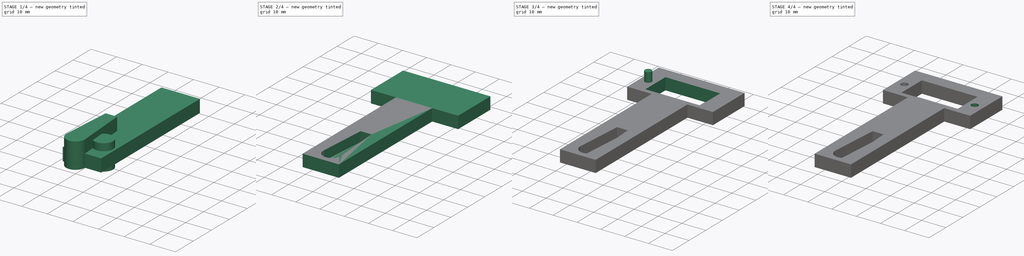
[diagram: build sequence overview — one tinted view per stage of 4, left to right]
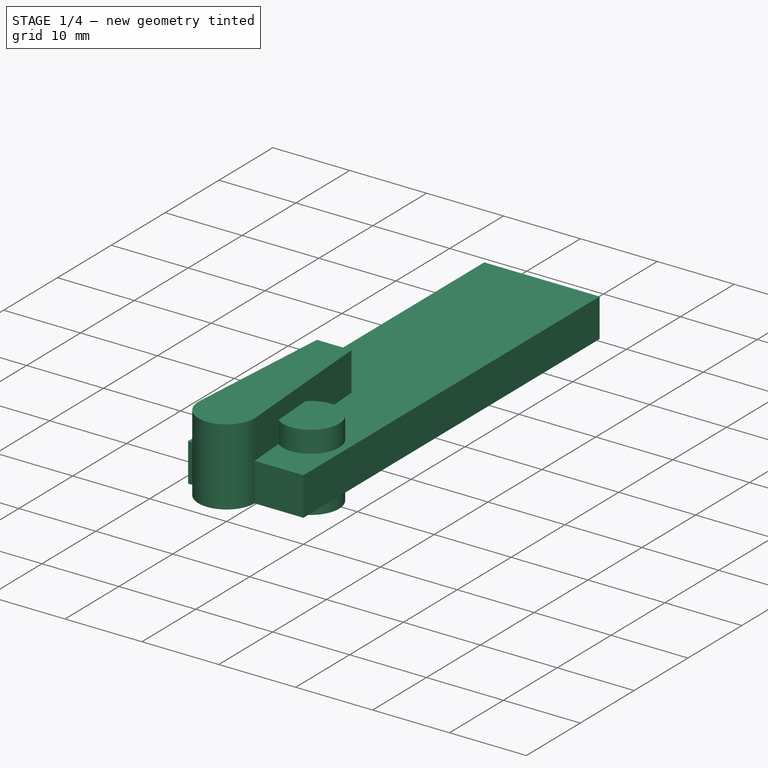
[diagram: stage 1 of 4 — iso view after this stage's code; geometry added in this stage tinted green]
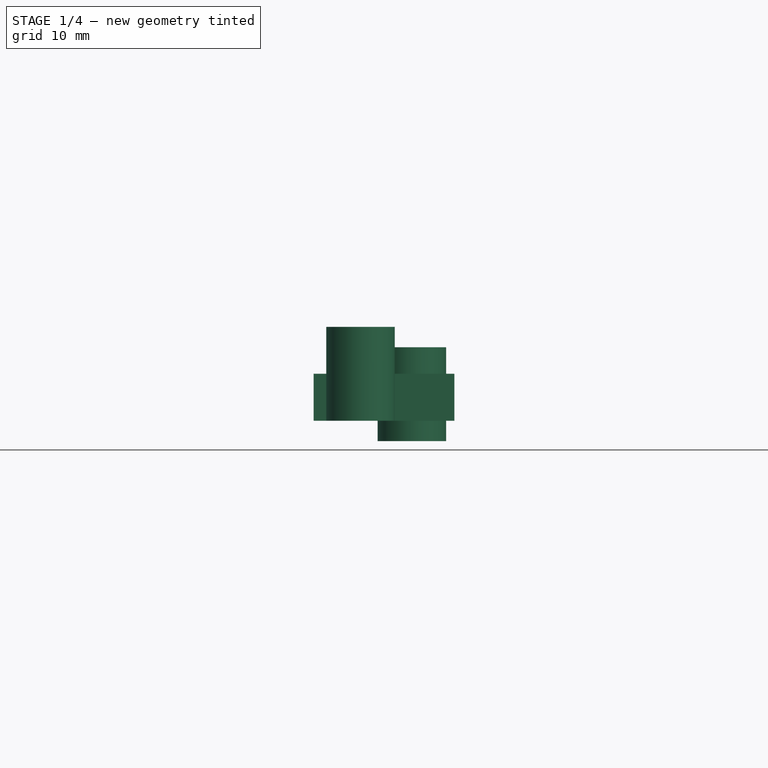
[diagram: stage 1 of 4 — front view after this stage's code; geometry added in this stage tinted green]
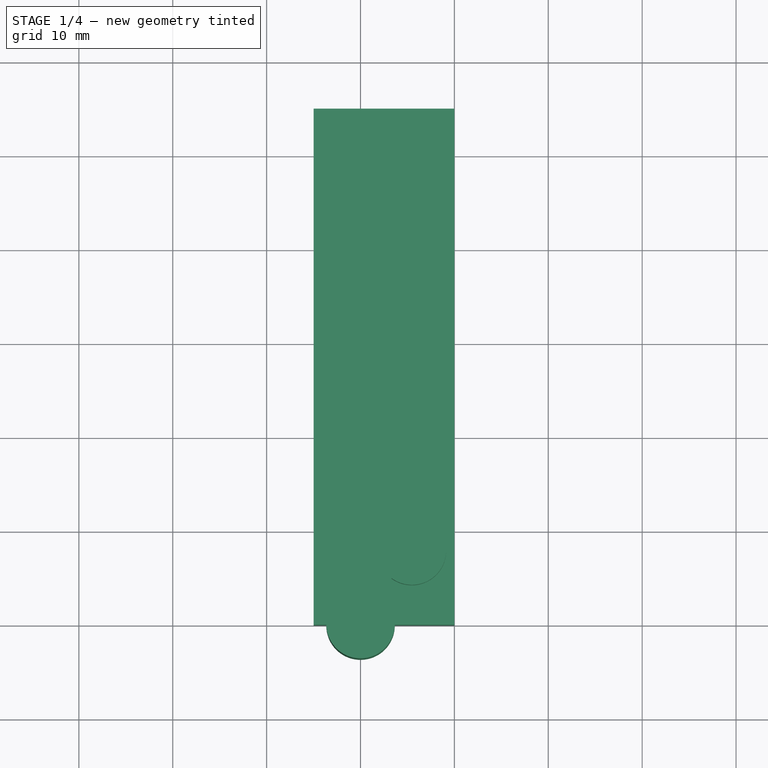
[diagram: stage 1 of 4 — top view after this stage's code; geometry added in this stage tinted green]
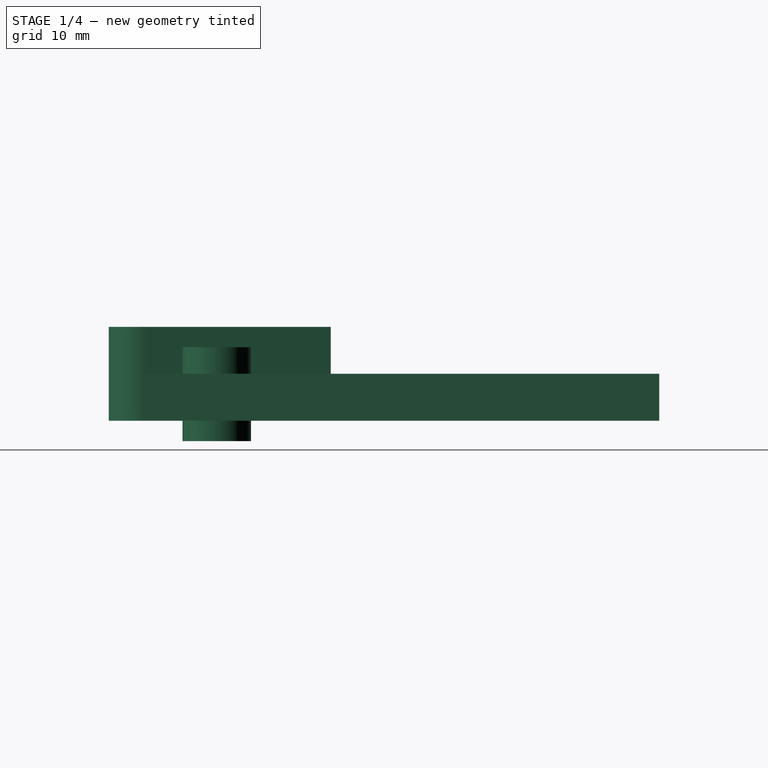
[diagram: stage 1 of 4 — right view after this stage's code; geometry added in this stage tinted green]
FCSTD DOCUMENT  (FreeCAD 0.20R29603 (Git))
Label: hook_holder_servo_lever_test
License: All rights reserved
LicenseURL: http://en.wikipedia.org/wiki/All_rights_reserved
objects: Part::Cut×5, Part::Box×3, Part::Cylinder×3, Sketcher::SketchObject×1, PartDesign::Pad×1, PartDesign::Body×1
note: 15 computed .brp shape members not serialized (recipe doc carries the construction recipe); baked Part::Feature solids carry a one-line shape summary decoded from their .brp

FEATURE [Sketcher::SketchObject] Sketch
  FullyConstrained = false
  MapMode = 5
  Support = -> [XY_Plane]
  sketch-geometry (4):
    g0: ArcOfCircle CenterX=0 CenterY=0 CenterZ=0 NormalX=0 NormalY=0 NormalZ=1 AngleXU=0 Radius=3.65 StartAngle=3.07126 EndAngle=6.35352
    g1: LineSegment StartX=-3.64098 StartY=0.256515 StartZ=0 EndX=-2.25 EndY=20 EndZ=0
    g2: LineSegment StartX=-2.25 StartY=20 StartZ=0 EndX=2.25 EndY=20 EndZ=0
    g3: LineSegment StartX=2.25 StartY=20 StartZ=0 EndX=3.64098 EndY=0.256515 EndZ=0
  constraints (9):
    c: Coincident(g0,g-1)
    c: Radius(g0) = 3.65
    c: Coincident(g2,g1)
    c: Coincident(g3,g2)
    c: DistanceX(g1,g-1) = 2.25
    c: DistanceX(g-1,g2) = 2.25
    c: DistanceY(g-1,g1) = 20
    c: Tangent(g0,g3) = 1.5708
    c: Tangent(g0,g1) = 1.5708
FEATURE [PartDesign::Pad] Pad
  Direction = (0,0,1)
  Length = 10
  Length2 = 10
  Profile = -> Sketch
  ReferenceAxis = -> Sketch [N_Axis]
  Type = 0
FEATURE [PartDesign::Body] Body
  Group = -> [Sketch,Pad]
  Origin = -> Origin
  Placement = pos=(3,6,1) rot=(0,0,1;0rad)
  Tip = -> Pad
FEATURE [Part::Box] Box003  label="Cube001"
  AttacherType = Attacher::AttachEngine3D
  Height = 5
  Length = 15
  Placement = pos=(-5,0,0) rot=(0,0,1;0rad)
  Width = 55
FEATURE [Part::Cylinder] Cylinder
  Angle = 360
  AttacherType = Attacher::AttachEngine3D
  FirstAngle = 0
  Height = 10
  Placement = pos=(5.47,7.86,-2.18) rot=(0,0,1;0rad)
  Radius = 3.65
  SecondAngle = 0
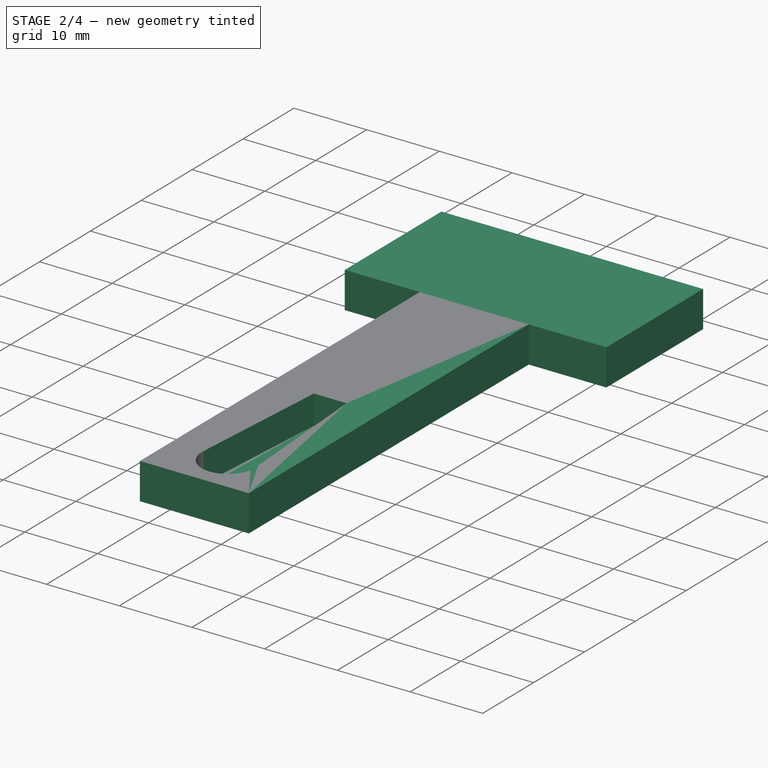
[diagram: stage 2 of 4 — iso view after this stage's code; geometry added in this stage tinted green]
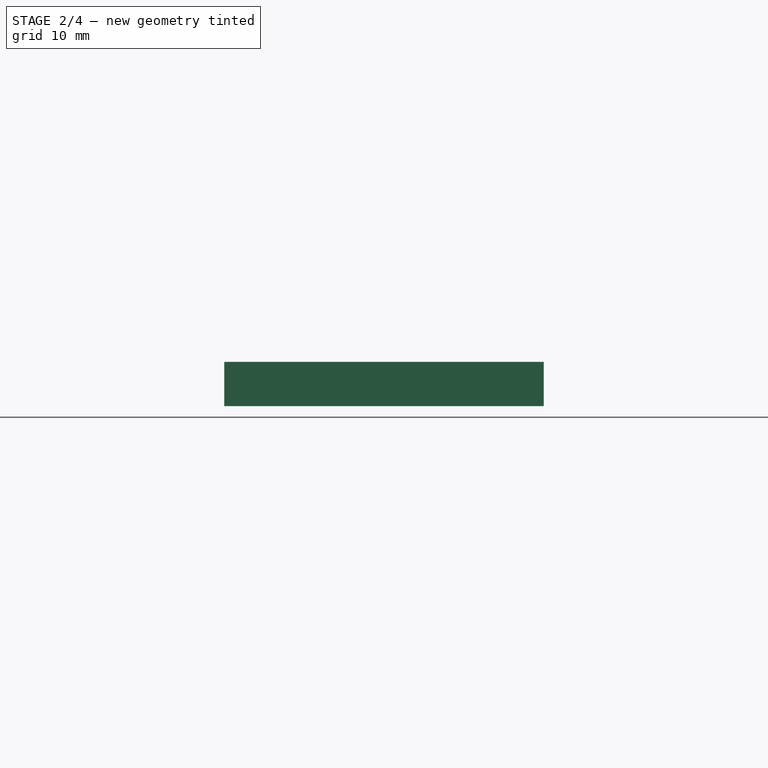
[diagram: stage 2 of 4 — front view after this stage's code; geometry added in this stage tinted green]
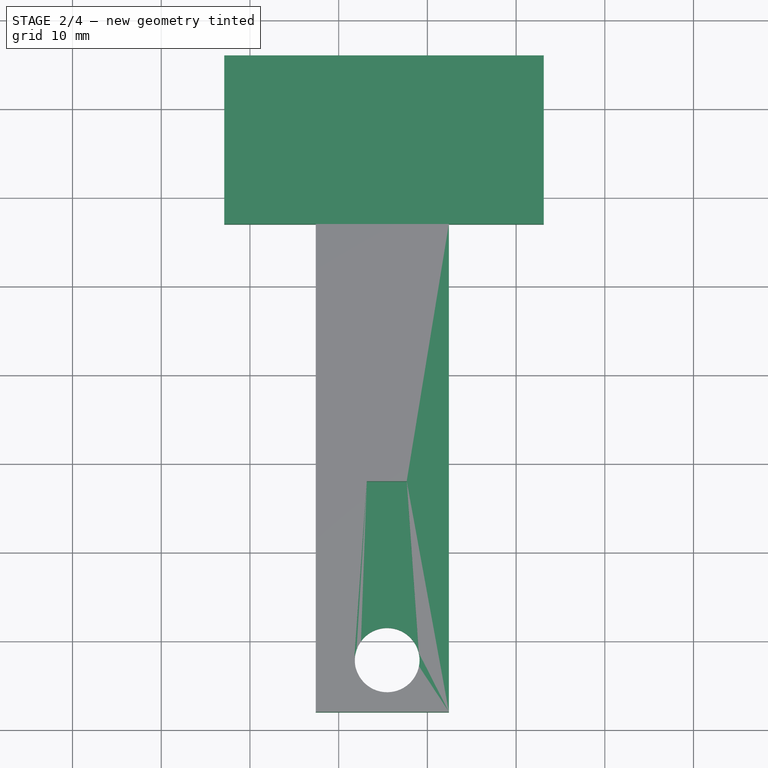
[diagram: stage 2 of 4 — top view after this stage's code; geometry added in this stage tinted green]
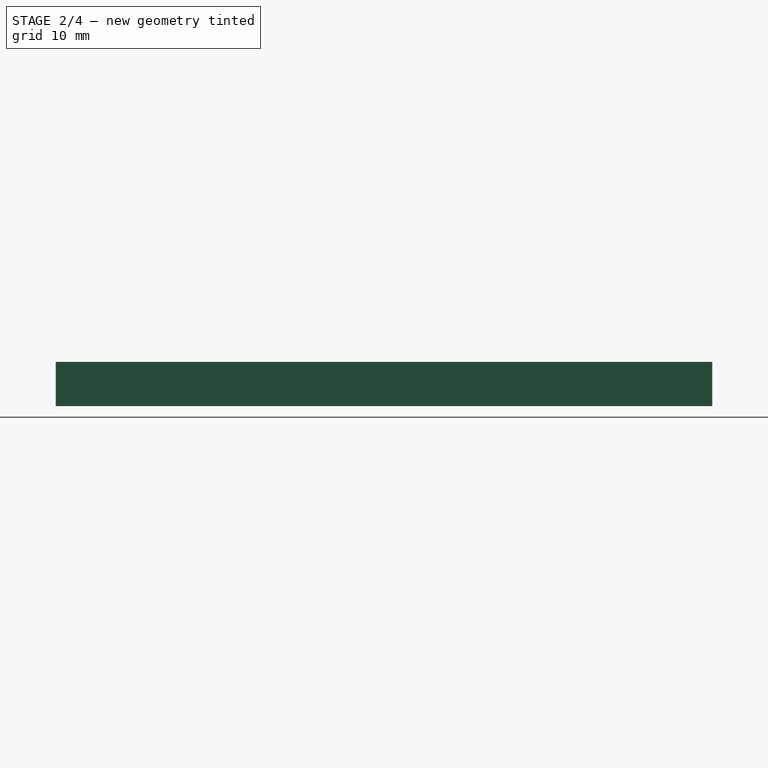
[diagram: stage 2 of 4 — right view after this stage's code; geometry added in this stage tinted green]
FEATURE [Part::Box] Box002  label="top_body"
  AttacherType = Attacher::AttachEngine3D
  Height = 5
  Length = 36
  Placement = pos=(-12.89,57,0) rot=(0,0,1;0rad)
  Width = 19
FEATURE [Part::Cut] Cut007
  Base = -> Box003
  Placement = pos=(2.42,2,0) rot=(0,0,1;0rad)
  Tool = -> Body
FEATURE [Part::Cut] Cut008
  Base = -> Cut007
  Tool = -> Cylinder
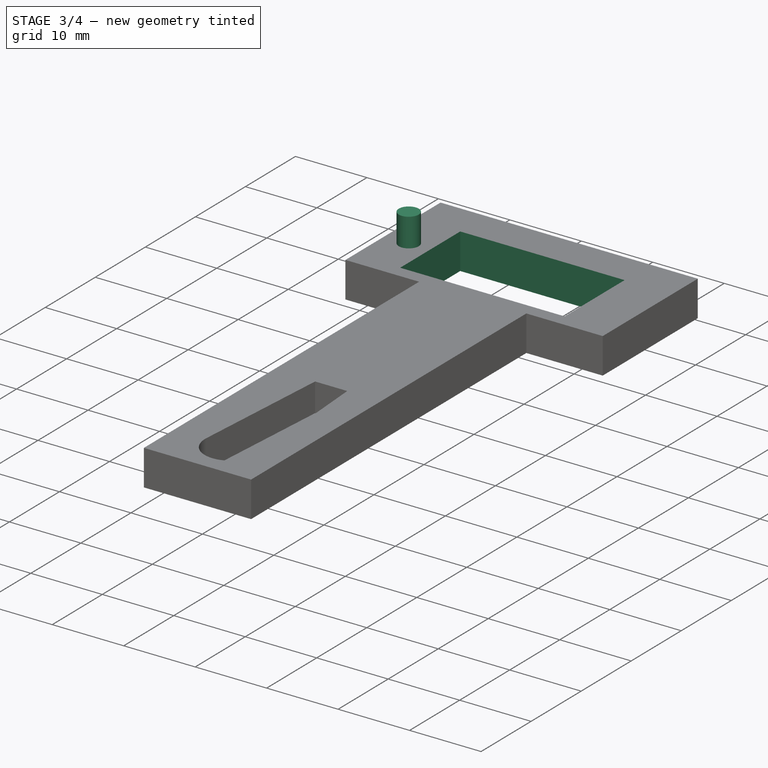
[diagram: stage 3 of 4 — iso view after this stage's code; geometry added in this stage tinted green]
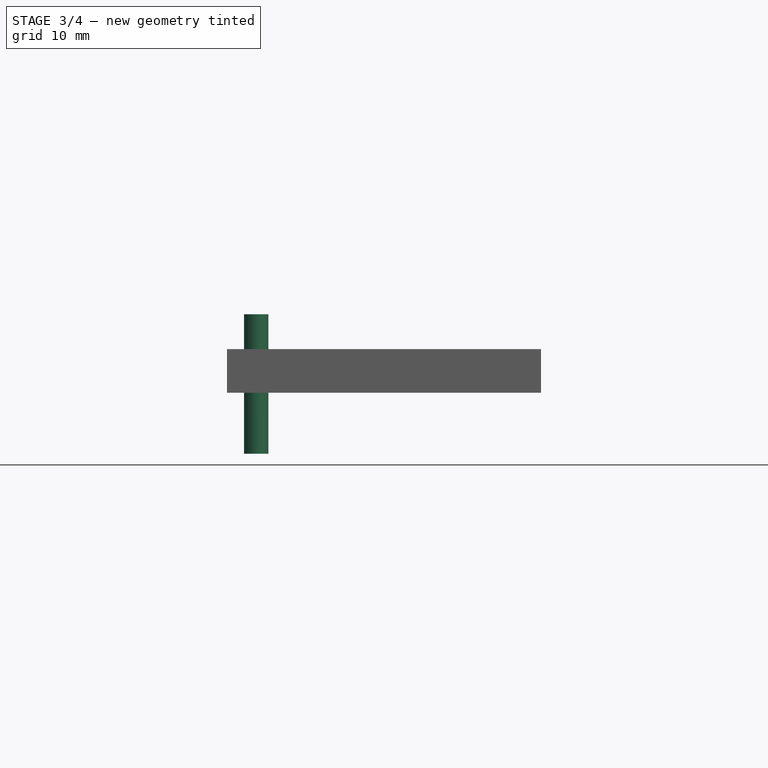
[diagram: stage 3 of 4 — front view after this stage's code; geometry added in this stage tinted green]
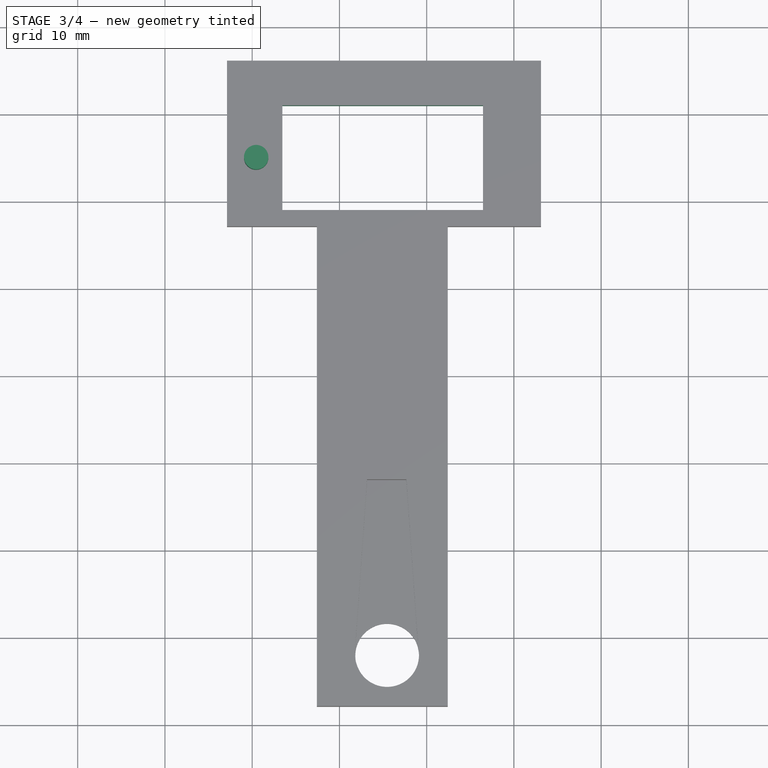
[diagram: stage 3 of 4 — top view after this stage's code; geometry added in this stage tinted green]
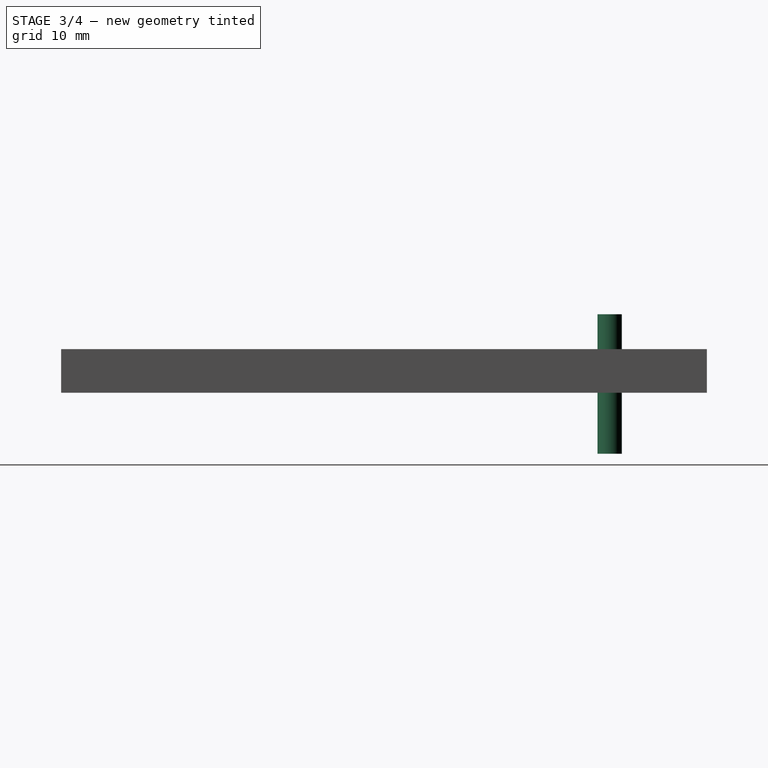
[diagram: stage 3 of 4 — right view after this stage's code; geometry added in this stage tinted green]
FEATURE [Part::Box] Box  label="Cube"
  AttacherType = Attacher::AttachEngine3D
  Height = 10
  Length = 23
  Placement = pos=(-6.54,58.87,-1) rot=(0,0,1;0rad)
  Width = 12
FEATURE [Part::Cylinder] Cylinder004
  Angle = 360
  AttacherType = Attacher::AttachEngine3D
  FirstAngle = 0
  Height = 16
  Placement = pos=(-9.54,64.87,-7) rot=(0,0,1;0rad)
  Radius = 1.4
  SecondAngle = 0
FEATURE [Part::Cut] Cut
  Base = -> Box002
  Tool = -> Box
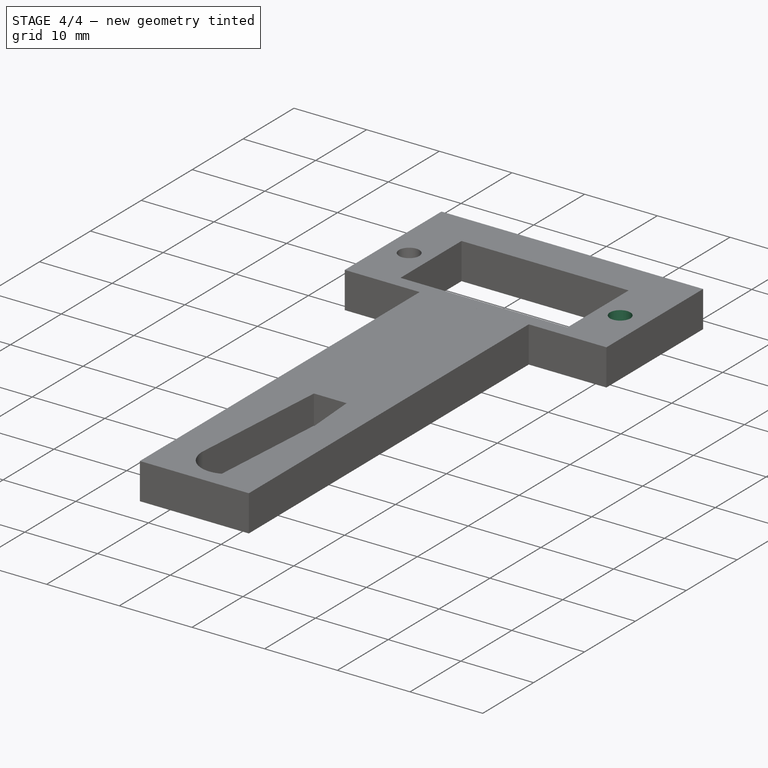
[diagram: stage 4 of 4 — iso view after this stage's code; geometry added in this stage tinted green]
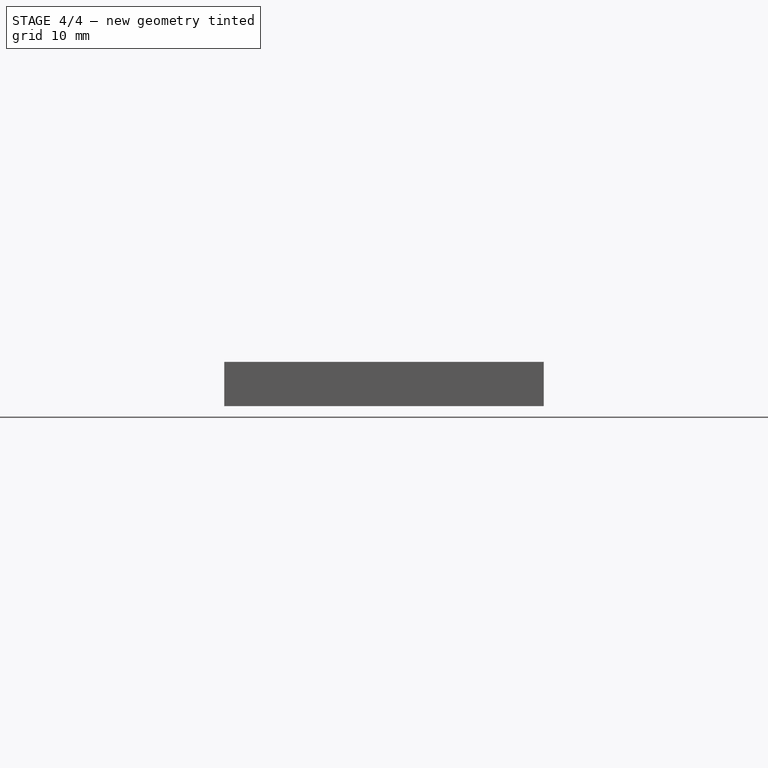
[diagram: stage 4 of 4 — front view after this stage's code; geometry added in this stage tinted green]
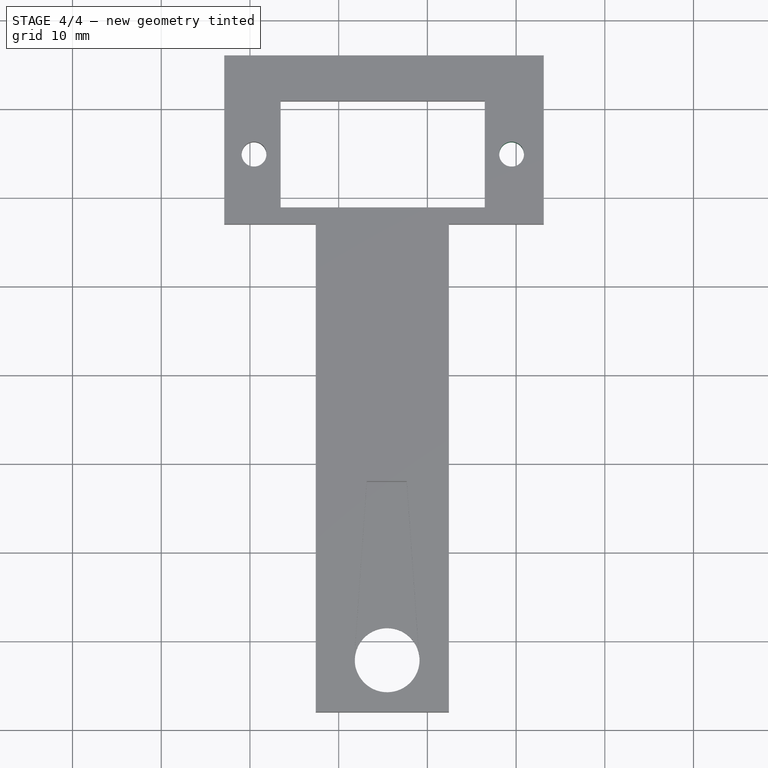
[diagram: stage 4 of 4 — top view after this stage's code; geometry added in this stage tinted green]
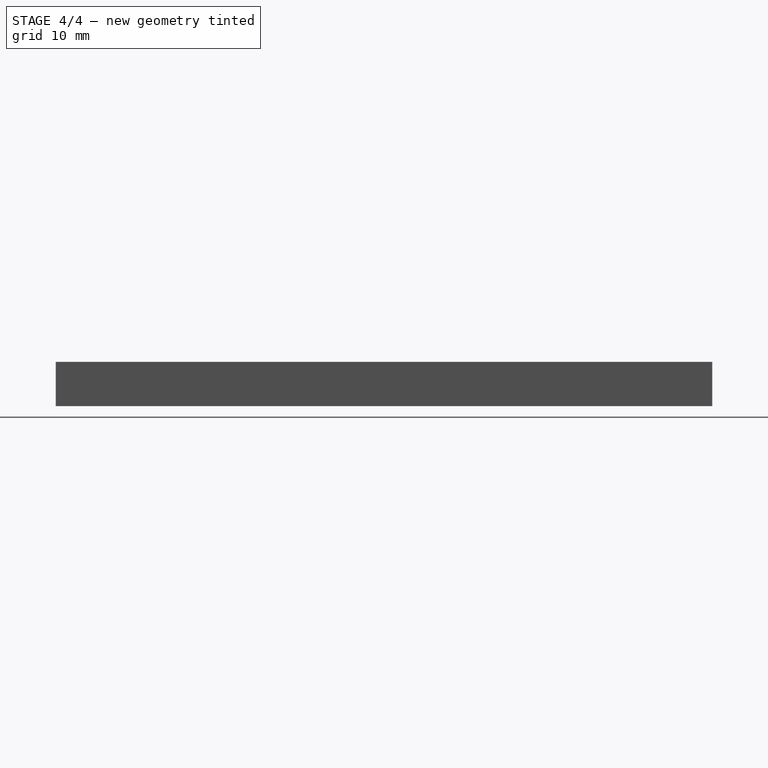
[diagram: stage 4 of 4 — right view after this stage's code; geometry added in this stage tinted green]
FEATURE [Part::Cylinder] Cylinder003
  Angle = 360
  AttacherType = Attacher::AttachEngine3D
  FirstAngle = 0
  Height = 16
  Placement = pos=(19.4939,64.87,-6.99998) rot=(0,0,1;0rad)
  Radius = 1.4
  SecondAngle = 0
FEATURE [Part::Cut] Cut005
  Base = -> Cut
  Tool = -> Cylinder004
FEATURE [Part::Cut] Cut006  label="plate"
  Base = -> Cut005
  Tool = -> Cylinder003
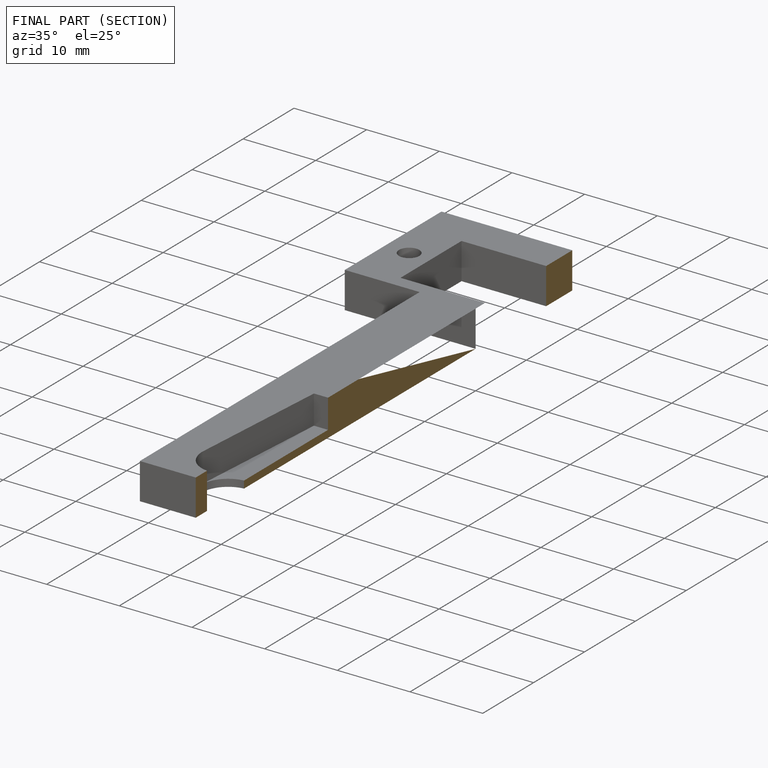
[diagram: finished part — half-section view (interior)]
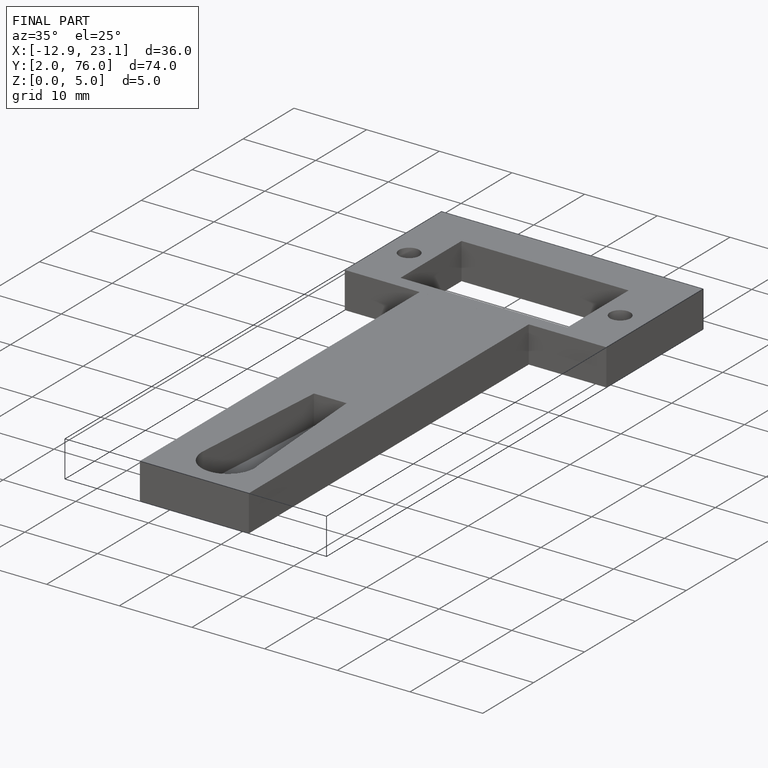
[diagram: finished part — iso view with bounding-box wireframe]
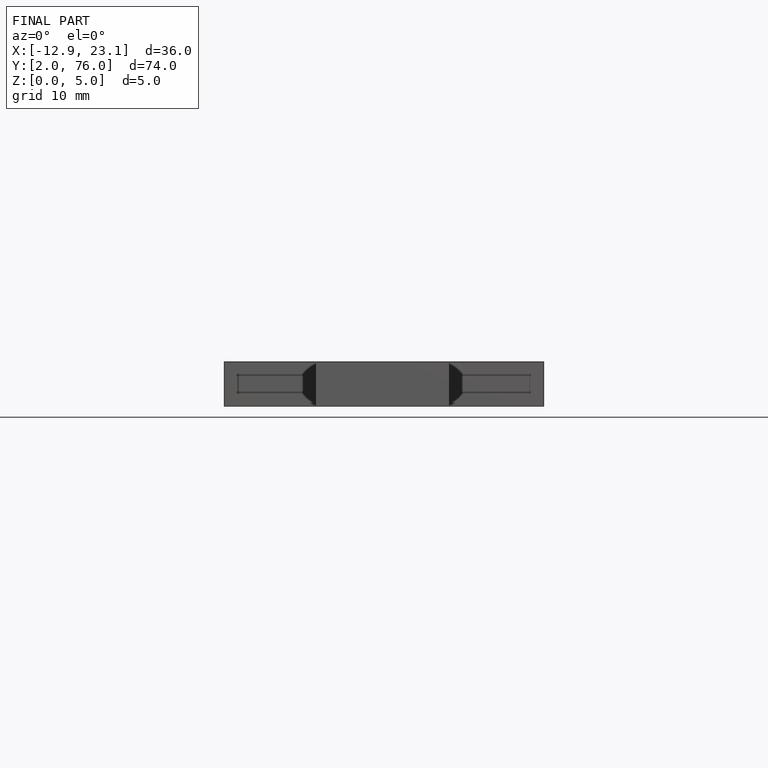
[diagram: finished part — front view with bounding-box wireframe]
